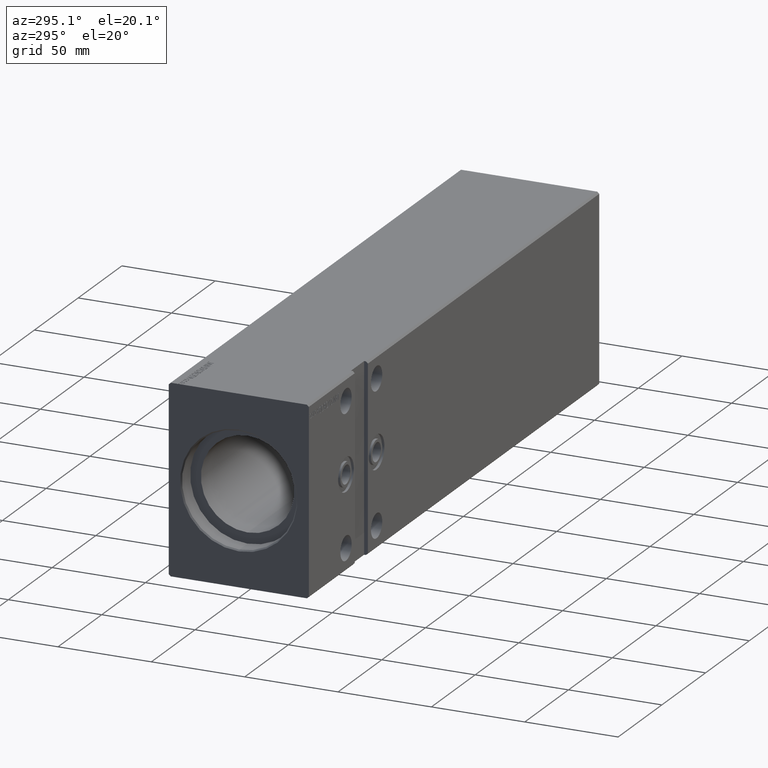
[diagram: clean part render]
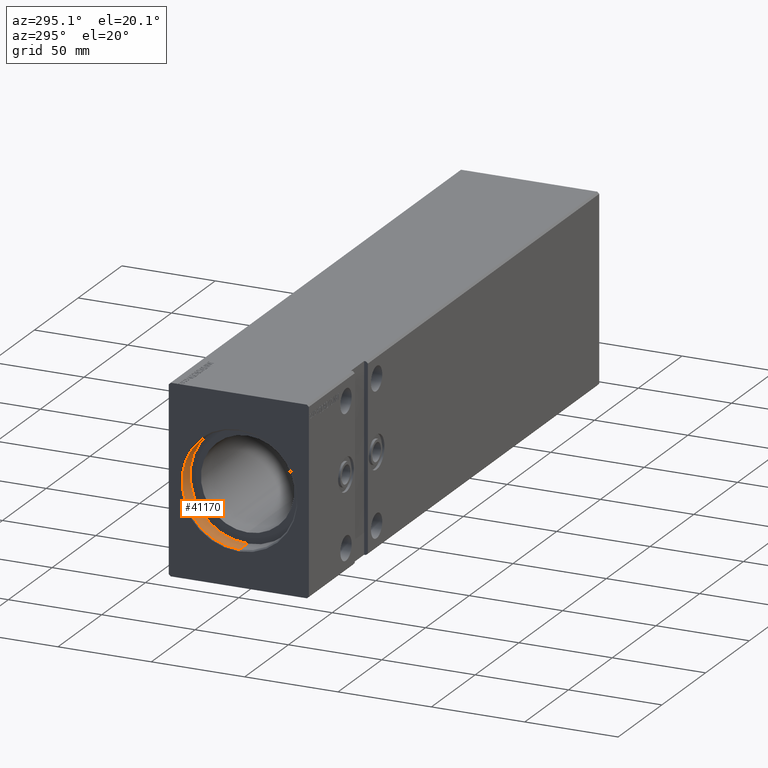
[diagram: same view with one face highlighted and labeled with its STEP entity id]
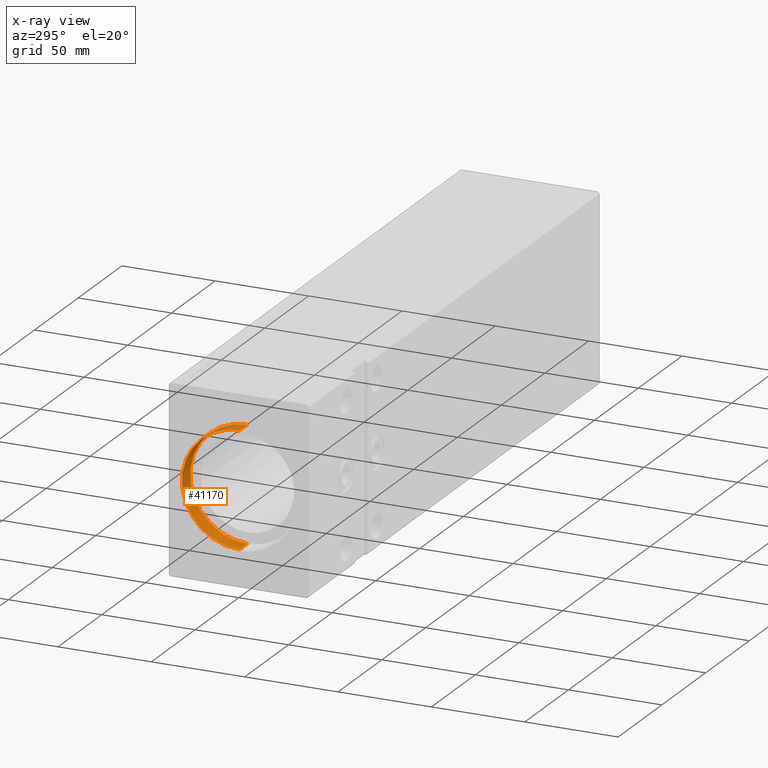
[diagram: x-ray of the same camera — body ghosted, the highlighted face saturated]
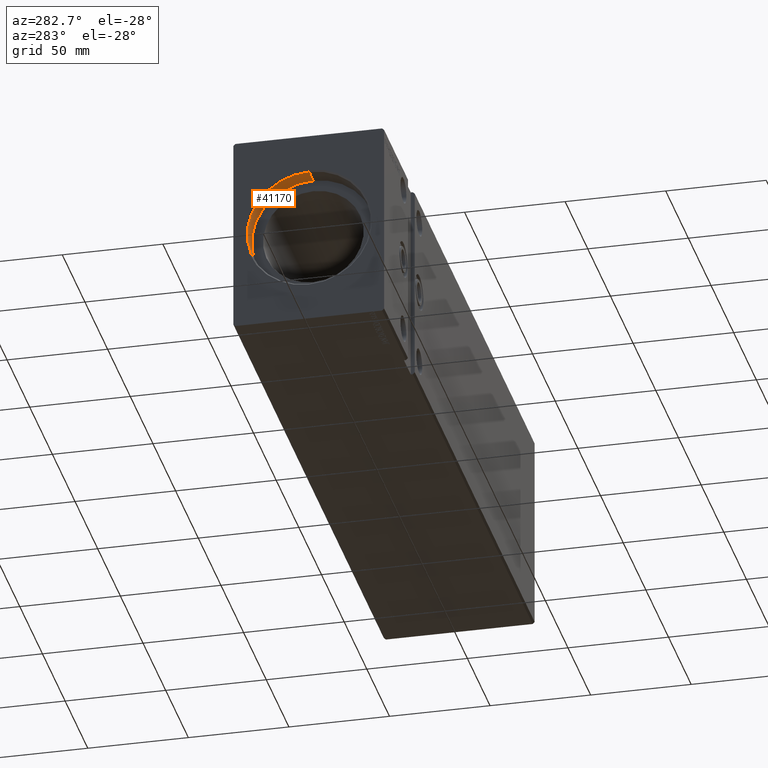
[diagram: same view with one face highlighted and labeled with its STEP entity id]
A machine part, auxiliary view. The second image highlights one B-rep face of the part: STEP entity #41170.
The next image is the same camera in x-ray: the body ghosted, the highlighted face saturated — about 0% of this face is hidden behind the body in this view.
A second angle (auxiliary view) of the same face is appended — the face is thin or edge-on in the first view.
In plain terms, the highlighted cylindrical surface (partial cylindrical patch) has radius 30.75 mm, axis along (-1, -0, -0).
Its self-contained STEP definition (entity closure, byte-faithful):
#302 = CARTESIAN_POINT ( 'NONE',  ( 0.7000000000000790035, 3.765788907378111328E-15, -30.75000000000000355 ) ) ;
#1022 = CARTESIAN_POINT ( 'NONE',  ( 10.00000000000000000, 3.765788907378111328E-15, -30.75000000000000355 ) ) ;
#2668 = CARTESIAN_POINT ( 'NONE',  ( 0.7000000000000790035, 0.000000000000000000, 0.000000000000000000 ) ) ;
#3591 = VERTEX_POINT ( 'NONE', #33224 ) ;
#4619 = VERTEX_POINT ( 'NONE', #302 ) ;
#5077 = LINE ( 'NONE', #38232, #31883 ) ;
#7403 = EDGE_CURVE ( 'NONE', #38199, #4619, #37165, .T. ) ;
#8369 = VECTOR ( 'NONE', #23551, 1000.000000000000000 ) ;
#10744 = EDGE_CURVE ( 'NONE', #3591, #4619, #38948, .T. ) ;
#11307 = FACE_OUTER_BOUND ( 'NONE', #29820, .T. ) ;
#11611 = DIRECTION ( 'NONE',  ( -1.000000000000000000, 0.000000000000000000, 0.000000000000000000 ) ) ;
#11731 = DIRECTION ( 'NONE',  ( 0.000000000000000000, 0.000000000000000000, 1.000000000000000000 ) ) ;
#12071 = ORIENTED_EDGE ( 'NONE', *, *, #10744, .T. ) ;
#15056 = DIRECTION ( 'NONE',  ( -1.000000000000000000, -0.000000000000000000, -0.000000000000000000 ) ) ;
#17452 = DIRECTION ( 'NONE',  ( -1.000000000000000000, -0.000000000000000000, -0.000000000000000000 ) ) ;
#19771 = CIRCLE ( 'NONE', #24510, 30.75000000000000355 ) ;
#23551 = DIRECTION ( 'NONE',  ( -1.000000000000000000, -0.000000000000000000, -0.000000000000000000 ) ) ;
#23915 = DIRECTION ( 'NONE',  ( -1.000000000000000000, 0.000000000000000000, 0.000000000000000000 ) ) ;
#24510 = AXIS2_PLACEMENT_3D ( 'NONE', #27525, #23915, #37743 ) ;
#25870 = AXIS2_PLACEMENT_3D ( 'NONE', #37446, #17452, #11731 ) ;
#27007 = CYLINDRICAL_SURFACE ( 'NONE', #25870, 30.75000000000000355 ) ;
#27525 = CARTESIAN_POINT ( 'NONE',  ( 10.00000000000000000, 0.000000000000000000, 0.000000000000000000 ) ) ;
#28941 = ORIENTED_EDGE ( 'NONE', *, *, #31831, .T. ) ;
#29820 = EDGE_LOOP ( 'NONE', ( #41403, #37020, #28941, #12071 ) ) ;
#30095 = AXIS2_PLACEMENT_3D ( 'NONE', #2668, #11611, #37538 ) ;
#31831 = EDGE_CURVE ( 'NONE', #33363, #3591, #5077, .T. ) ;
#31883 = VECTOR ( 'NONE', #15056, 1000.000000000000000 ) ;
#32581 = CARTESIAN_POINT ( 'NONE',  ( 10.00000000000000000, 0.000000000000000000, 30.75000000000000355 ) ) ;
#33224 = CARTESIAN_POINT ( 'NONE',  ( 0.7000000000000790035, 0.000000000000000000, 30.75000000000000355 ) ) ;
#33363 = VERTEX_POINT ( 'NONE', #32581 ) ;
#37020 = ORIENTED_EDGE ( 'NONE', *, *, #41560, .F. ) ;
#37165 = LINE ( 'NONE', #1022, #8369 ) ;
#37446 = CARTESIAN_POINT ( 'NONE',  ( 10.00000000000000000, 0.000000000000000000, 0.000000000000000000 ) ) ;
#37538 = DIRECTION ( 'NONE',  ( 0.000000000000000000, 0.000000000000000000, -1.000000000000000000 ) ) ;
#37743 = DIRECTION ( 'NONE',  ( 0.000000000000000000, 0.000000000000000000, 1.000000000000000000 ) ) ;
#38199 = VERTEX_POINT ( 'NONE', #40125 ) ;
#38232 = CARTESIAN_POINT ( 'NONE',  ( 10.00000000000000000, 0.000000000000000000, 30.75000000000000355 ) ) ;
#38948 = CIRCLE ( 'NONE', #30095, 30.75000000000000355 ) ;
#40125 = CARTESIAN_POINT ( 'NONE',  ( 10.00000000000000000, 3.765788907378111328E-15, -30.75000000000000355 ) ) ;
#41170 = ADVANCED_FACE ( 'NONE', ( #11307 ), #27007, .F. ) ;
#41403 = ORIENTED_EDGE ( 'NONE', *, *, #7403, .F. ) ;
#41560 = EDGE_CURVE ( 'NONE', #33363, #38199, #19771, .T. ) ;